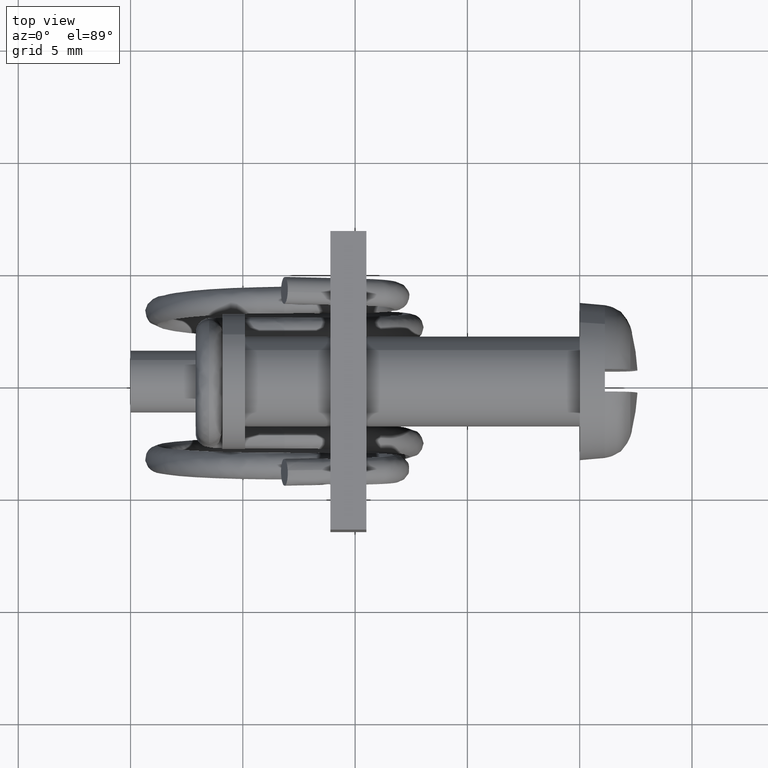
[diagram: clean part render]
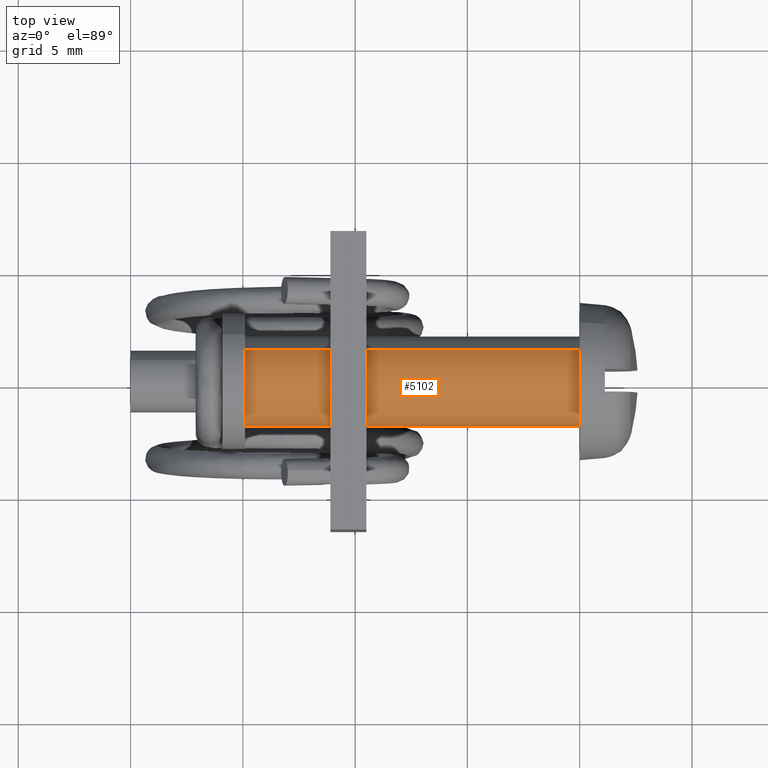
[diagram: same view with one face highlighted and labeled with its STEP entity id]
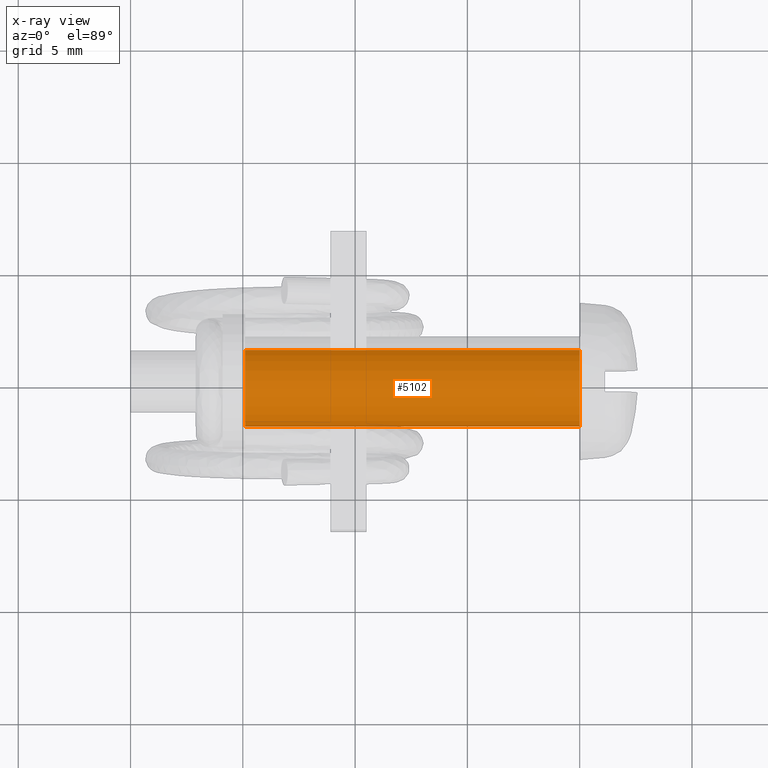
[diagram: x-ray of the same camera — body ghosted, the highlighted face saturated]
A machine part, top view. The second image highlights one B-rep face of the part: STEP entity #5102.
The next image is the same camera in x-ray: the body ghosted, the highlighted face saturated — about 0% of this face is hidden behind the body in this view.
In plain terms, the highlighted face is a freeform B-spline surface patch.
Its self-contained STEP definition (entity closure, byte-faithful):
#4901=CARTESIAN_POINT('',(-14.899999999999910,-1.376709079029236,-1.450748702476780));
#4902=VERTEX_POINT('',#4901);
#4913=CARTESIAN_POINT('',(-14.900000000000000,-1.999999999999975,0.000000314411297));
#4914=VERTEX_POINT('',#4913);
#4915=CARTESIAN_POINT('',(-14.899999999999910,-1.376709079029236,-1.450748702476780));
#4916=CARTESIAN_POINT('',(-14.899999999999910,-1.499396996997618,-1.334397114725205));
#4917=CARTESIAN_POINT('',(-14.899999999999929,-1.666414192221337,-1.129714986059279));
#4918=CARTESIAN_POINT('',(-14.900000000000000,-1.849270321219384,-0.785429771417444));
#4919=CARTESIAN_POINT('',(-14.899999999999880,-1.968000497898075,-0.431137012396466));
#4920=CARTESIAN_POINT('',(-14.900000000000070,-2.000032113358898,-0.152173821194623));
#4921=CARTESIAN_POINT('',(-14.900000000000000,-1.999999999999975,0.000000314411297));
#4922=B_SPLINE_CURVE_WITH_KNOTS('',3,(#4915,#4916,#4917,#4918,#4919,#4920,#4921),.UNSPECIFIED.,.F.,.U.,(4,1,1,1,4),(8.135130E-009,0.507241373442389,0.786225956243331,1.166651342152826,1.623167387036379),.UNSPECIFIED.);
#4923=EDGE_CURVE('',#4902,#4914,#4922,.T.);
#4925=CARTESIAN_POINT('',(-14.900000000000000,0.0,2.0));
#4926=VERTEX_POINT('',#4925);
#4927=CARTESIAN_POINT('',(-14.900000000000000,-1.999999999999975,0.000000314411297));
#4928=CARTESIAN_POINT('',(-14.899999999999990,-2.000115272046115,0.212722409340958));
#4929=CARTESIAN_POINT('',(-14.900000000000070,-1.938069547270850,0.597174230155298));
#4930=CARTESIAN_POINT('',(-14.899999999999920,-1.705825932478294,1.080478358852692));
#4931=CARTESIAN_POINT('',(-14.900000000000150,-1.444708266868800,1.398600909375028));
#4932=CARTESIAN_POINT('',(-14.899999999999970,-1.188781665479822,1.616612586791450));
#4933=CARTESIAN_POINT('',(-14.899999999999981,-0.904632182797054,1.796581815483752));
#4934=CARTESIAN_POINT('',(-14.900000000000110,-0.507214102579900,1.955528454883739));
#4935=CARTESIAN_POINT('',(-14.900000000000160,-0.179988796680562,2.000052049173404));
#4936=CARTESIAN_POINT('',(-14.900000000000000,0.0,2.0));
#4937=B_SPLINE_CURVE_WITH_KNOTS('',3,(#4927,#4928,#4929,#4930,#4931,#4932,#4933,#4934,#4935,#4936),.UNSPECIFIED.,.F.,.U.,(4,1,1,1,1,1,1,4),(0.000000029858240,0.638137611436174,1.153562762148263,1.595341129728596,1.865328786315013,2.159857474877020,2.601651754572452,3.141612188542816),.UNSPECIFIED.);
#4938=EDGE_CURVE('',#4914,#4926,#4937,.T.);
#4940=CARTESIAN_POINT('',(-14.899999999999910,1.376709079029239,1.450748702476783));
#4941=VERTEX_POINT('',#4940);
#4942=CARTESIAN_POINT('',(-14.900000000000000,0.0,2.0));
#4943=CARTESIAN_POINT('',(-14.900000000000000,0.126536949892245,2.000013690308272));
#4944=CARTESIAN_POINT('',(-14.899999999999970,0.387513994996905,1.975154918911976));
#4945=CARTESIAN_POINT('',(-14.899999999999959,0.699743214402646,1.881770418890741));
#4946=CARTESIAN_POINT('',(-14.899999999999920,1.043764963844745,1.720266947908012));
#4947=CARTESIAN_POINT('',(-14.899999999999929,1.244803133074162,1.576012172983094));
#4948=CARTESIAN_POINT('',(-14.899999999999910,1.376709079029239,1.450748702476783));
#4949=B_SPLINE_CURVE_WITH_KNOTS('',3,(#4942,#4943,#4944,#4945,#4946,#4947,#4948),.UNSPECIFIED.,.F.,.U.,(4,1,1,1,4),(7.946785E-009,0.379611330251685,0.782943469145450,0.972751187088852,1.518445297156766),.UNSPECIFIED.);
#4950=EDGE_CURVE('',#4926,#4941,#4949,.T.);
#4984=CARTESIAN_POINT('',(-7.771561E-016,1.376709079252282,1.450748702265123));
#4985=VERTEX_POINT('',#4984);
#4986=CARTESIAN_POINT('',(-7.771561E-016,1.376709079252282,1.450748702265123));
#4987=CARTESIAN_POINT('',(-14.899999999999910,1.376709079029239,1.450748702476783));
#4988=QUASI_UNIFORM_CURVE('',1,(#4986,#4987),.UNSPECIFIED.,.F.,.U.);
#4989=EDGE_CURVE('',#4985,#4941,#4988,.T.);
#5020=CARTESIAN_POINT('',(-7.771561E-016,-1.376709079252279,-1.450748702265120));
#5021=VERTEX_POINT('',#5020);
#5031=CARTESIAN_POINT('',(-7.771561E-016,-1.376709079252279,-1.450748702265120));
#5032=CARTESIAN_POINT('',(-14.899999999999910,-1.376709079029236,-1.450748702476780));
#5033=QUASI_UNIFORM_CURVE('',1,(#5031,#5032),.UNSPECIFIED.,.F.,.U.);
#5034=EDGE_CURVE('',#5021,#4902,#5033,.T.);
#5041=CARTESIAN_POINT('',(0.372500000000000,-1.376709151387508,-1.450748742024575));
#5042=CARTESIAN_POINT('',(0.372500000000000,-2.827457893412082,-0.074039590637067));
#5043=CARTESIAN_POINT('',(0.372500000000000,-1.450748742024575,1.376709151387508));
#5044=CARTESIAN_POINT('',(0.372500000000000,-0.074039590637067,2.827457893412082));
#5045=CARTESIAN_POINT('',(0.372500000000000,1.376709151387508,1.450748742024575));
#5046=CARTESIAN_POINT('',(-15.281812499999999,-1.376709151387508,-1.450748742024575));
#5047=CARTESIAN_POINT('',(-15.281812500000004,-2.827457893412082,-0.074039590637067));
#5048=CARTESIAN_POINT('',(-15.281812499999999,-1.450748742024575,1.376709151387508));
#5049=CARTESIAN_POINT('',(-15.281812500000004,-0.074039590637067,2.827457893412082));
#5050=CARTESIAN_POINT('',(-15.281812499999999,1.376709151387508,1.450748742024575));
#5058=(BOUNDED_SURFACE()B_SPLINE_SURFACE(2,1,((#5041,#5046),(#5042,#5047),(#5043,#5048),(#5044,#5049),(#5045,#5050)),.UNSPECIFIED.,.F.,.F.,.U.)B_SPLINE_SURFACE_WITH_KNOTS((3,2,3),(2,2),(0.0,3.313708498984759,6.627416997969519),(0.0,15.654312500000000),.UNSPECIFIED.)GEOMETRIC_REPRESENTATION_ITEM()RATIONAL_B_SPLINE_SURFACE(((1.0,1.0),(0.707106781186548,0.707106781186548),(1.0,1.0),(0.707106781186548,0.707106781186548),(1.0,1.0)))REPRESENTATION_ITEM('')SURFACE());
#5059=ORIENTED_EDGE('',*,*,#4950,.F.);
#5060=ORIENTED_EDGE('',*,*,#4938,.F.);
#5061=ORIENTED_EDGE('',*,*,#4923,.F.);
#5062=ORIENTED_EDGE('',*,*,#5034,.F.);
#5063=CARTESIAN_POINT('',(-4.440892E-016,-1.999999999999975,0.000000314411297));
#5064=VERTEX_POINT('',#5063);
#5065=CARTESIAN_POINT('',(-7.771561E-016,-1.376709079252279,-1.450748702265120));
#5066=CARTESIAN_POINT('',(-7.504438E-016,-1.499396888953789,-1.334397154811273));
#5067=CARTESIAN_POINT('',(-7.034523E-016,-1.666414181607224,-1.129714967109726));
#5068=CARTESIAN_POINT('',(-6.244104E-016,-1.849270306130611,-0.785429785049105));
#5069=CARTESIAN_POINT('',(-5.430709E-016,-1.968000522536743,-0.431137060961300));
#5070=CARTESIAN_POINT('',(-4.790257E-016,-2.000032065116601,-0.152173669809503));
#5071=CARTESIAN_POINT('',(-4.440892E-016,-1.999999999999975,0.000000314411297));
#5072=B_SPLINE_CURVE_WITH_KNOTS('',3,(#5065,#5066,#5067,#5068,#5069,#5070,#5071),.UNSPECIFIED.,.F.,.U.,(4,1,1,1,4),(8.135058E-009,0.507241373346250,0.786225956094347,1.166651341931793,1.623167386728887),.UNSPECIFIED.);
#5073=EDGE_CURVE('',#5021,#5064,#5072,.T.);
#5074=ORIENTED_EDGE('',*,*,#5073,.T.);
#5075=CARTESIAN_POINT('',(-4.440892E-016,0.0,2.0));
#5076=VERTEX_POINT('',#5075);
#5077=CARTESIAN_POINT('',(-4.440892E-016,-1.999999999999975,0.000000314411297));
#5078=CARTESIAN_POINT('',(-4.440892E-016,-2.000113280405790,0.212719769550633));
#5079=CARTESIAN_POINT('',(-4.440892E-016,-1.938075303246596,0.597181759731319));
#5080=CARTESIAN_POINT('',(-4.440892E-016,-1.712960749800609,1.065601965248161));
#5081=CARTESIAN_POINT('',(-4.440892E-016,-1.445820971017930,1.399333829714208));
#5082=CARTESIAN_POINT('',(-4.440892E-016,-1.114380869630518,1.681768331120456));
#5083=CARTESIAN_POINT('',(-4.440892E-016,-0.740647569786967,1.875678552307122));
#5084=CARTESIAN_POINT('',(-4.440892E-016,-0.343603625925498,1.980263480525091));
#5085=CARTESIAN_POINT('',(-4.440892E-016,-0.114535403008740,2.000009605888910));
#5086=CARTESIAN_POINT('',(-4.440892E-016,0.0,2.0));
#5087=B_SPLINE_CURVE_WITH_KNOTS('',3,(#5077,#5078,#5079,#5080,#5081,#5082,#5083,#5084,#5085,#5086),.UNSPECIFIED.,.F.,.U.,(4,1,1,1,1,1,1,4),(0.000000029858240,0.638137611436174,1.153562762148263,1.546270927851440,1.914412801574698,2.454384777310940,2.798005495316569,3.141612188542816),.UNSPECIFIED.);
#5088=EDGE_CURVE('',#5064,#5076,#5087,.T.);
#5089=ORIENTED_EDGE('',*,*,#5088,.T.);
#5090=CARTESIAN_POINT('',(-4.440892E-016,0.0,2.0));
#5091=CARTESIAN_POINT('',(-4.804425E-016,0.150263631405762,2.000022339127497));
#5092=CARTESIAN_POINT('',(-5.531455E-016,0.450776561951792,1.965982679896867));
#5093=CARTESIAN_POINT('',(-6.694029E-016,0.931318479686474,1.797049168973976));
#5094=CARTESIAN_POINT('',(-7.410874E-016,1.227621540335244,1.592378206052613));
#5095=CARTESIAN_POINT('',(-7.771561E-016,1.376709079252282,1.450748702265123));
#5096=B_SPLINE_CURVE_WITH_KNOTS('',3,(#5090,#5091,#5092,#5093,#5094,#5095),.UNSPECIFIED.,.F.,.U.,(4,1,1,4),(7.946643E-009,0.450789515181011,0.901573397284085,1.518445297464259),.UNSPECIFIED.);
#5097=EDGE_CURVE('',#5076,#4985,#5096,.T.);
#5098=ORIENTED_EDGE('',*,*,#5097,.T.);
#5099=ORIENTED_EDGE('',*,*,#4989,.T.);
#5100=EDGE_LOOP('',(#5059,#5060,#5061,#5062,#5074,#5089,#5098,#5099));
#5101=FACE_OUTER_BOUND('',#5100,.T.);
#5102=ADVANCED_FACE('',(#5101),#5058,.T.);